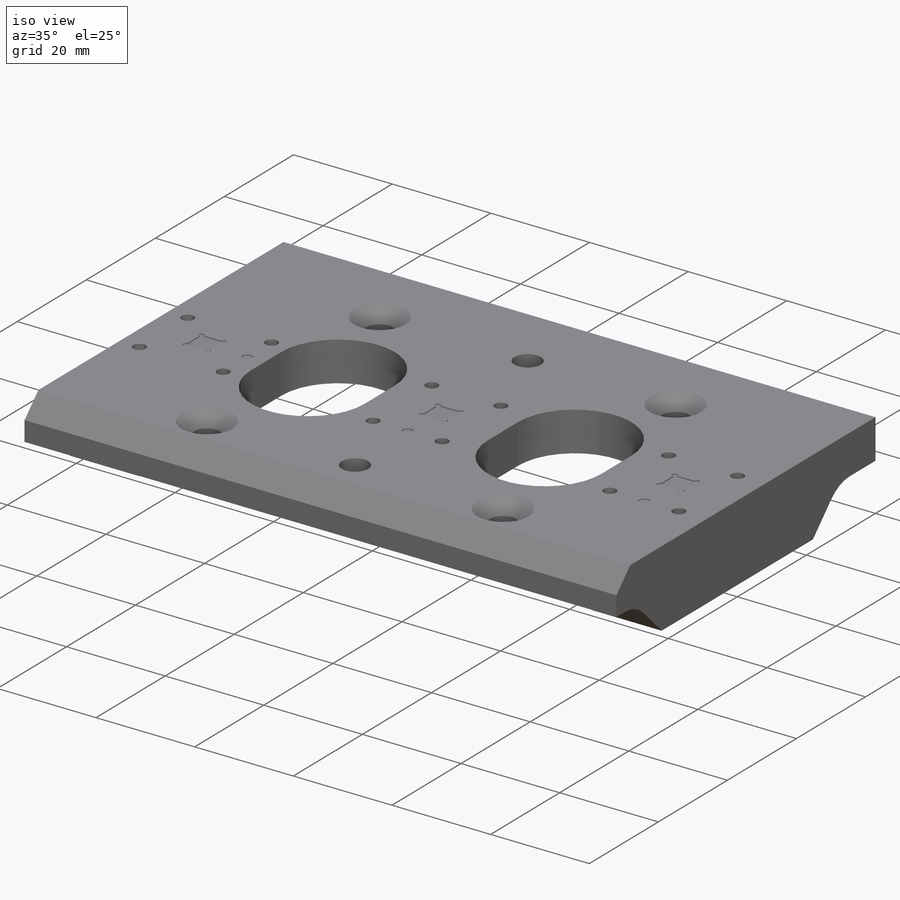
[diagram: iso view]
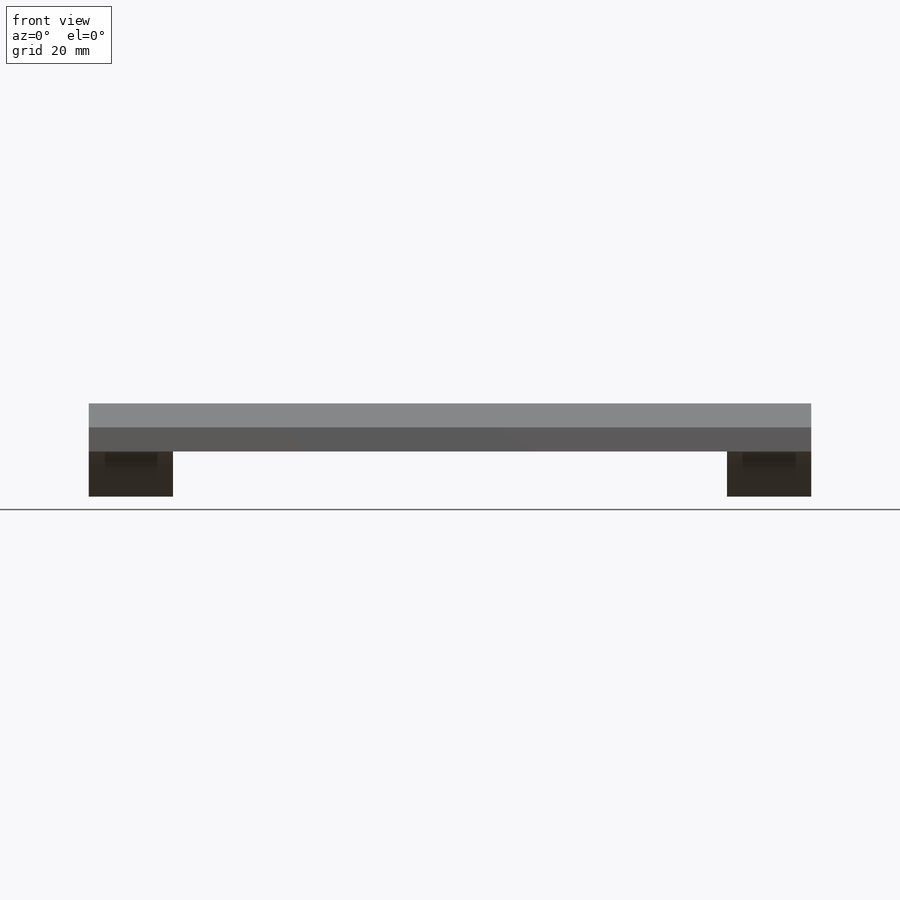
[diagram: front view]
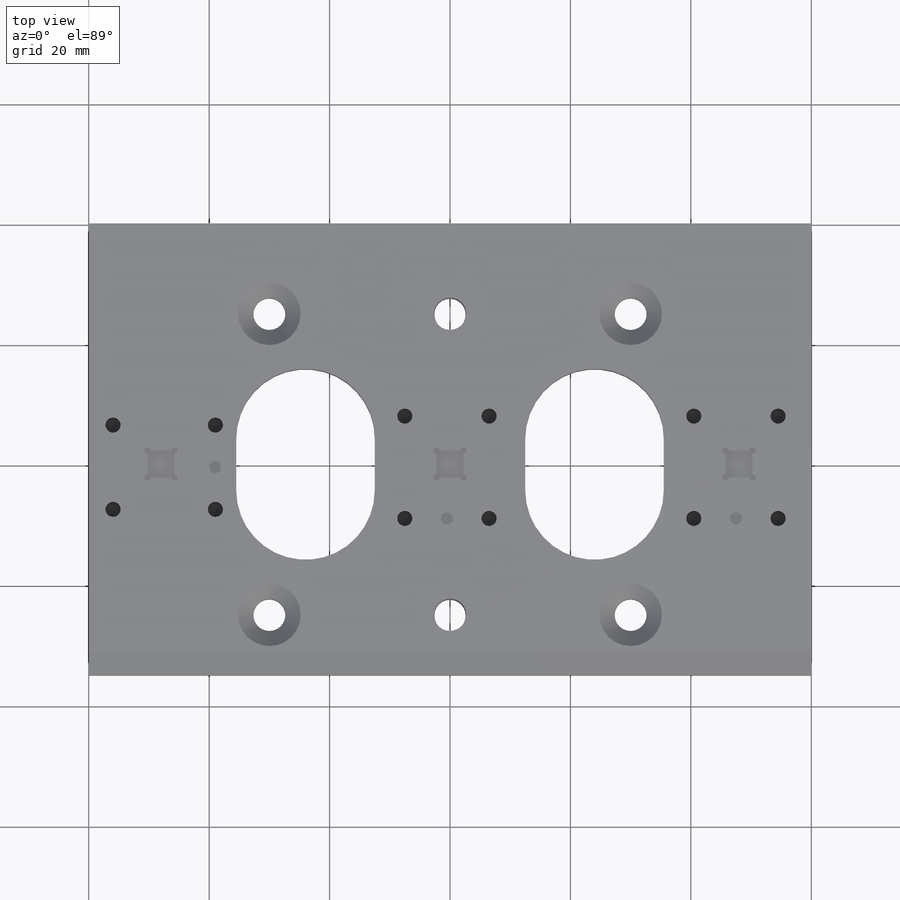
[diagram: top view]
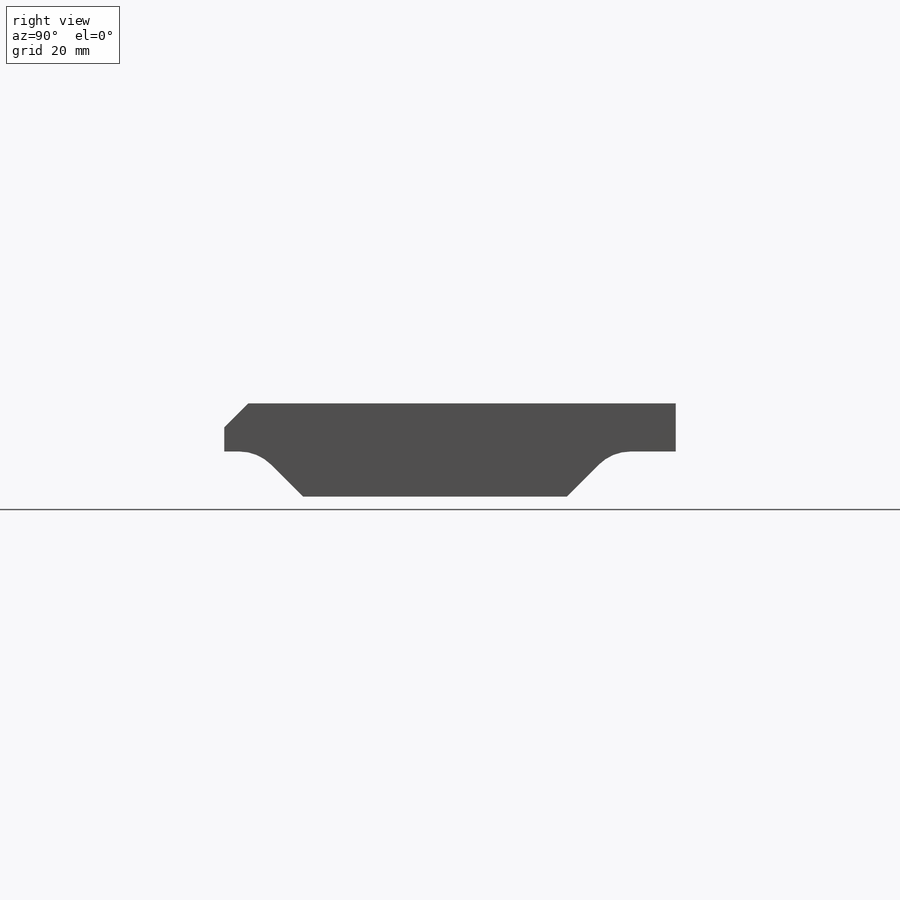
[diagram: right view]
SOLIDWORKS PART (.sldprt)
format: sldprt  version: not decoded by parser v0  size: 849,408 bytes
history: native  units: mm
features: sketch x12, thread x12, cut_extrude x4, plane x3, extrude x2, hole x2, material x1, chamfer x1 (+10 scaffold rows collapsed)
feature tree (47):
  scaffold x10  (default folders/planes/origin — collapsed)
  material  "6061 Сплав"
  plane  "Спереди"
  plane  "Сверху"
  plane  "Справа"
  sketch  "Эскиз5"  dims[D1=75.0mm]
  extrude  "Бобышка-Вытянуть2"  Depth=8mm
  sketch  "Sketch2"  dims[c1.D19=~0.870629mm c1.D37=0.5mm c1.D38=1.0mm c1.D39=1.0mm c1.D1=6.48mm c1.D2=7.52mm c1.D3=7.97mm c1.D4=7.52mm c1.D5=6.48mm c1.D6=7.97mm c1.D7=7.0mm c1.D8=9.03mm c1.D9=9.03mm c1.D10=9.03mm c1.D11=~11.751225mm c2.D1=7.97mm c2.D2=9.03mm c2.D3=9.03mm c2.D4=7.97mm c2.D5=6.48mm c2.D6=7.52mm c2.D7=7.0mm c2.D8=9.03mm c2.D9=6.48mm c2.D10=7.52mm c2.D11=7.97mm c2.D12=9.03mm c2.D13=9.03mm c2.D14=7.97mm c2.D15=6.48mm c2.D16=7.52mm c2.D17=7.0mm c2.D18=9.03mm c2.D19=6.48mm c2.D20=7.52mm c2.D21=7.97mm c2.D22=9.03mm c2.D23=9.03mm c2.D24=7.97mm c2.D25=6.48mm c2.D26=7.52mm c2.D27=7.0mm c2.D28=9.03mm c2.D29=6.48mm c2.D30=7.52mm c3.D11=95.0mm c3.D1=9.027mm c3.D2=7.973mm c3.D3=6.481mm c3.D4=7.519mm c3.D5=7.973mm c3.D6=9.027mm c3.D7=7.519mm c3.D8=6.481mm c3.D9=7.0mm c3.D10=9.027mm c4.D11=6.481mm c4.D12=7.519mm c4.D13=7.973mm c4.D14=9.027mm c4.D15=7.519mm c4.D16=6.481mm c4.D17=9.027mm c4.D18=7.973mm c4.D19=9.03mm c4.D20=7.0mm c4.D21=6.481mm c4.D22=7.519mm c4.D23=7.973mm c4.D24=9.027mm c4.D25=7.519mm c4.D26=6.481mm c4.D27=9.027mm c4.D28=7.973mm c4.D29=9.027mm c4.D30=7.0mm c4.D31=~10.271869mm c5.D19=4.52mm c5.D20=4.52mm c5.D31=4.52mm c5.D32=4.52mm c5.D33=4.52mm c5.D34=4.52mm c5.D35=9.027mm c5.D36=7.0mm]
  cut_extrude  "Cut-Extrude2"  Depth=0.2mm
  hole  "M3x0.5 Tapped Hole1"  Diameter=2.5mm Depth=5.5mm
  sketch  "Sketch4"
  sketch  "Sketch3"  dims[hole-wizard template sketch: 47 standard entries collapsed; hole parameters kept: c15.Tap Drill Depth=5.5mm c15.D3=~14.816244mm c15.Drill Angle=118.0deg]
  thread  "Hole Thread1"  Diameter=4mm  [1 undecoded]
  thread  "Hole Thread2"  Diameter=4mm  [1 undecoded]
  thread  "Hole Thread3"  Diameter=4mm  [1 undecoded]
  thread  "Hole Thread4"  Diameter=4mm  [1 undecoded]
  thread  "Hole Thread5"  Diameter=4mm  [1 undecoded]
  thread  "Hole Thread6"  Diameter=4mm  [1 undecoded]
  thread  "Hole Thread7"  Diameter=4mm  [1 undecoded]
  thread  "Hole Thread8"  Diameter=4mm  [1 undecoded]
  thread  "Hole Thread9"  Diameter=4mm  [1 undecoded]
  thread  "Hole Thread10"  Diameter=4mm  [1 undecoded]
  thread  "Hole Thread11"  Diameter=4mm  [1 undecoded]
  thread  "Hole Thread12"  Diameter=4mm  [1 undecoded]
  sketch  "Sketch6"  dims[D1=24.0mm]
  sketch  "Sketch9"  dims[D1=60.0mm]
  sketch  "Sketch5"  dims[c1.D5=1.5mm c1.D1=24.0mm c1.D2=24.0mm c1.D3=24.0mm c1.D4=24.0mm c2.D5=24.0mm]
  hole  "Зенковка для  винта с плоской головкой M51"  Diameter=5.3mm Depth=8mm
  sketch  "Sketch11"
  sketch  "Sketch10"  dims[hole-wizard template sketch: 55 standard entries collapsed; hole parameters kept: c17.Thru Hole Depth=8.0mm c17.Near C'Sink Dia.=10.4mm c17.D4=~3.666174mm c17.Near C'Sink Angle=90.0deg]
  cut_extrude  "Cut-Extrude3"  [1 undecoded]
  sketch  "Эскиз6"  dims[c1.D1=12.5mm c1.D2=12.5mm c1.D3=12.5mm c1.D4=12.5mm c1.D5=3.5mm c1.D6=3.5mm c1.D7=3.5mm c1.D8=3.5mm c1.D9=3.5mm c1.D10=3.5mm c2.D5=120.0mm]
  cut_extrude  "Вырез-Вытянуть1"  Depth=10mm
  sketch  "Эскиз7"  dims[c1.D2=15.0mm c1.D1=65.0mm c1.D3=~33.751341mm c2.D3=45.0deg c2.D4=7.5mm]
  extrude  "Бобышка-Вытянуть3"  [1 undecoded]
  sketch  "Эскиз8"  dims[D1=14.0mm D2=14.0mm]
  cut_extrude  "Вырез-Вытянуть2"  [1 undecoded]
  chamfer  "Фаска1"  Distance=4mm Angle=45deg
decode coverage: 28 of 33 modeling features carry decoded parameters
note: ~ marks probable driven/reference dimensions
note: 15 parameter values undecoded
summary: no parameter record found for 3 features
note: suppression state not decoded; provenance and decode notes live in map.json
